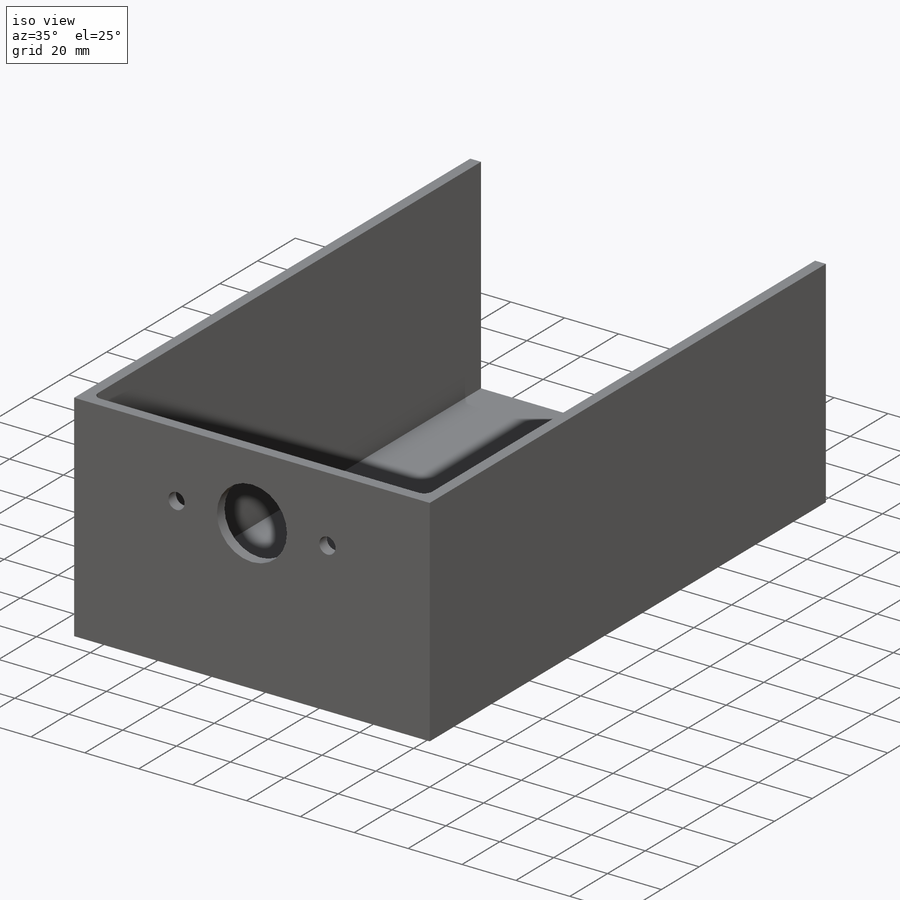
[diagram: iso view]
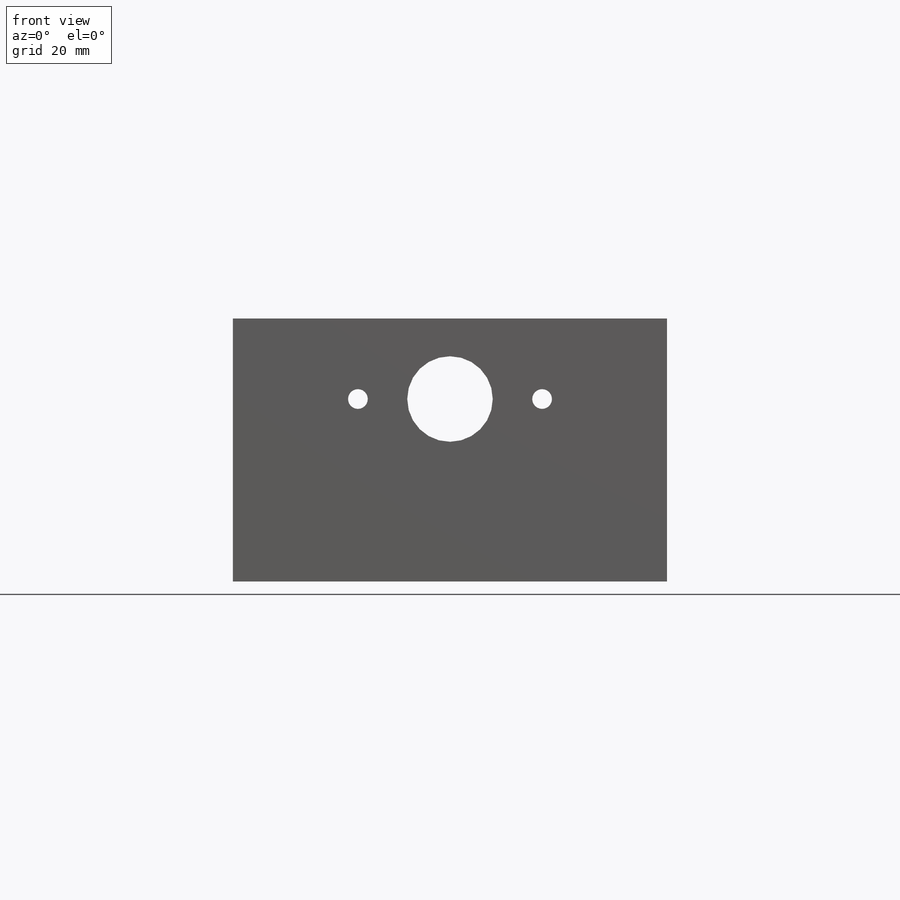
[diagram: front view]
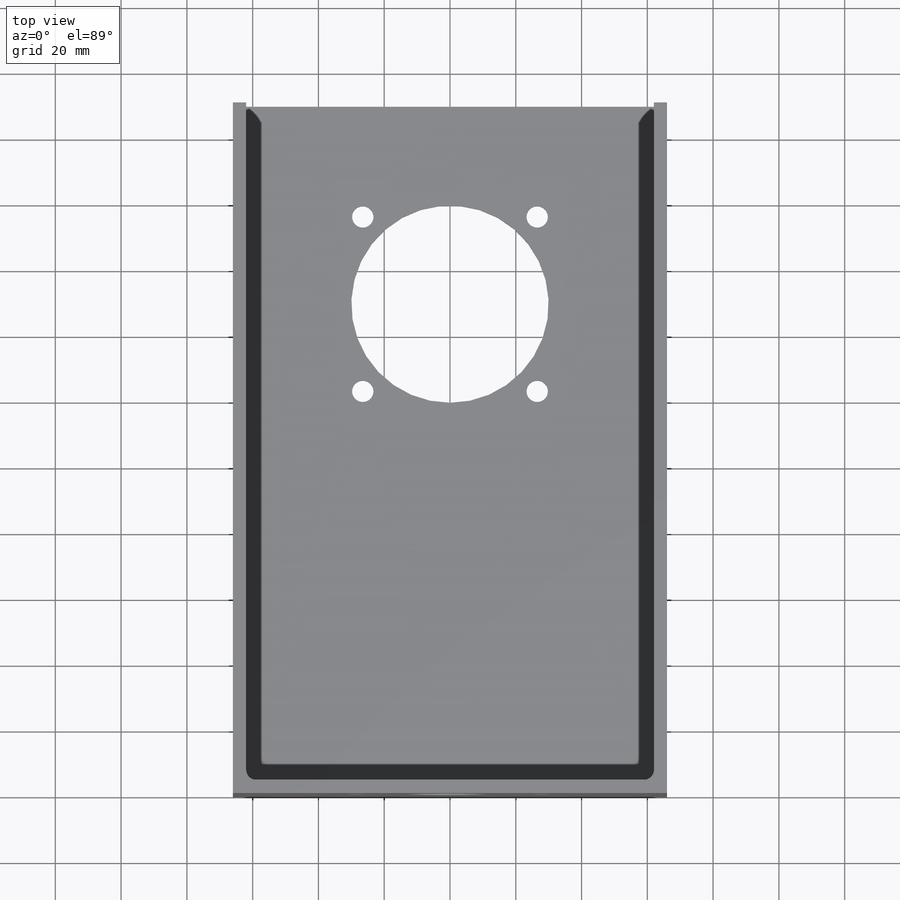
[diagram: top view]
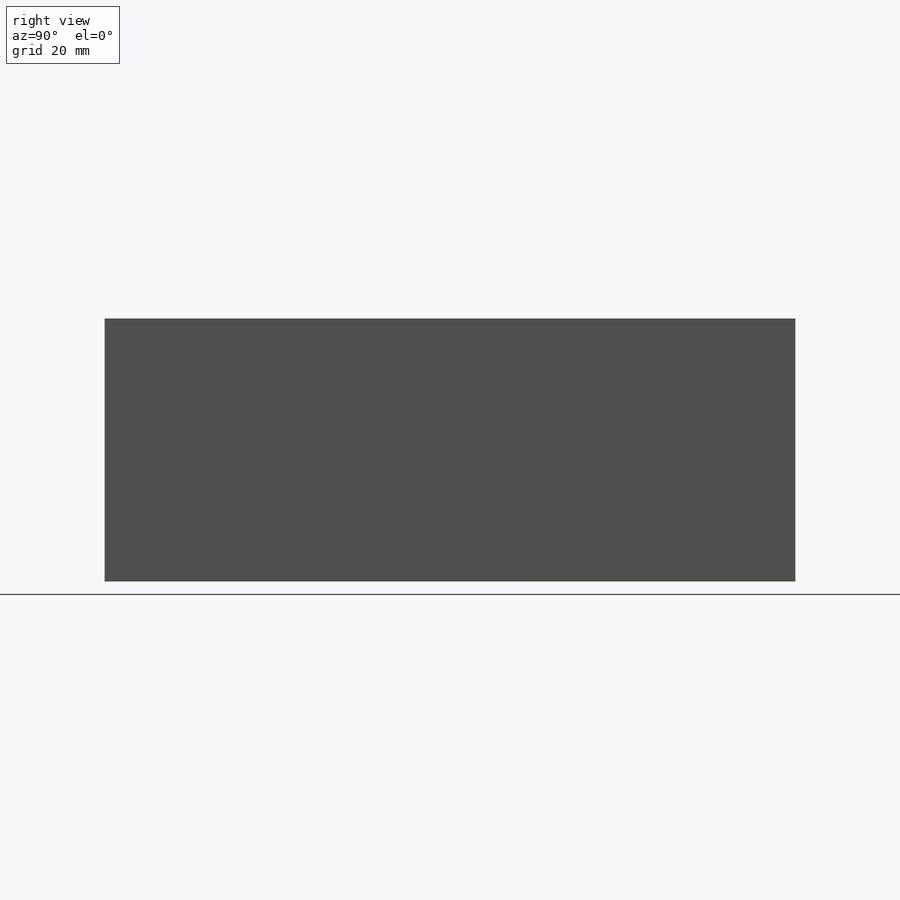
[diagram: right view]
SOLIDWORKS PART (.sldprt)
format: sldprt  version: not decoded by parser v0  size: 236,032 bytes
history: native  units: mm
features: sketch x4, plane x3, cut_extrude x3, material x1, extrude x1, fillet x1 (+10 scaffold rows collapsed)
feature tree (23):
  scaffold x10  (default folders/planes/origin — collapsed)
  material  "合金钢"
  plane  "前视基准面"
  plane  "上视基准面"
  plane  "右视基准面"
  sketch  "草图1"  dims[D1=132.0mm D2=80.0mm]
  extrude  "凸台-拉伸1"  Depth=210mm
  sketch  "草图2"  dims[D1=4.0mm D2=4.0mm]
  cut_extrude  "切除-拉伸1"  Depth=76mm
  sketch  "草图3"  dims[D1=26.0mm D2=6.0mm D3=28.0mm D4=55.5mm]
  cut_extrude  "切除-拉伸2"  Depth=10mm
  sketch  "草图4"  dims[D3=6.5mm D4=60.0mm D1=45.0deg D2=37.5mm D5=60.0mm D7=37.5mm D6=4.0]
  cut_extrude  "切除-拉伸3"  Depth=10mm
  fillet  "圆角1"  Radius=3mm
decode coverage: 9 of 9 modeling features carry decoded parameters
note: suppression state not decoded; provenance and decode notes live in map.json
